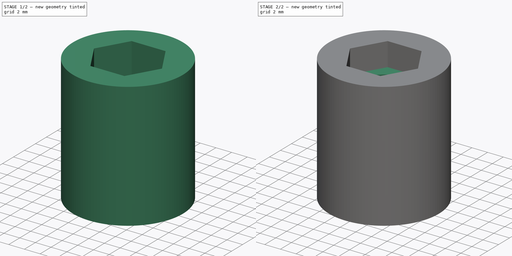
[diagram: build sequence overview — one tinted view per stage of 2, left to right]
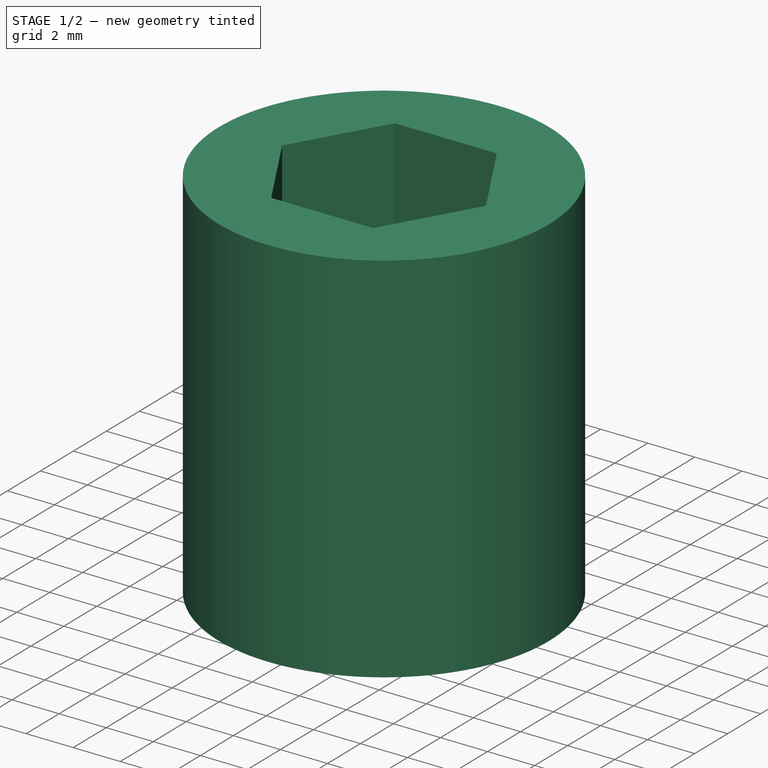
[diagram: stage 1 of 2 — iso view after this stage's code; geometry added in this stage tinted green]
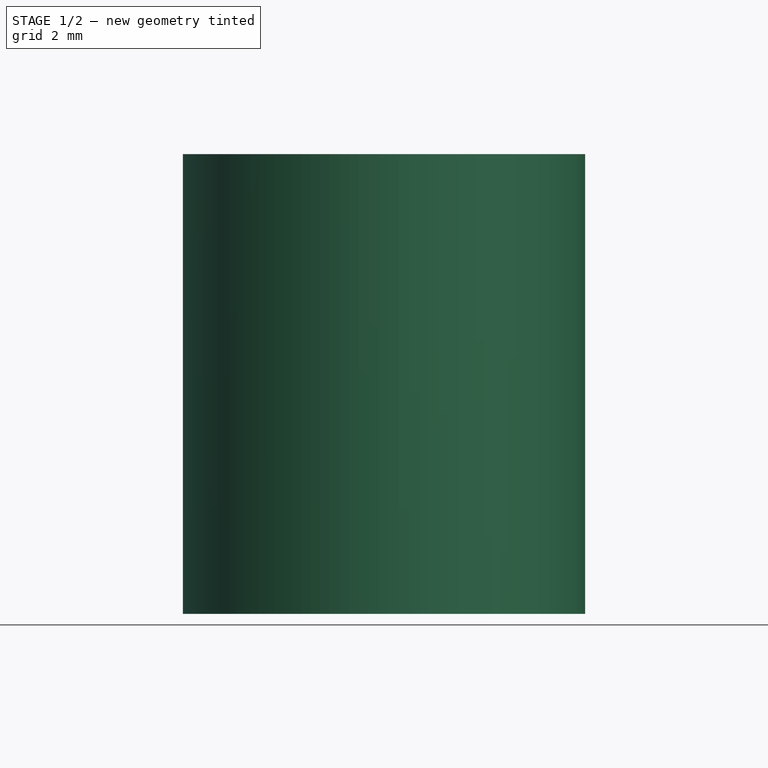
[diagram: stage 1 of 2 — front view after this stage's code; geometry added in this stage tinted green]
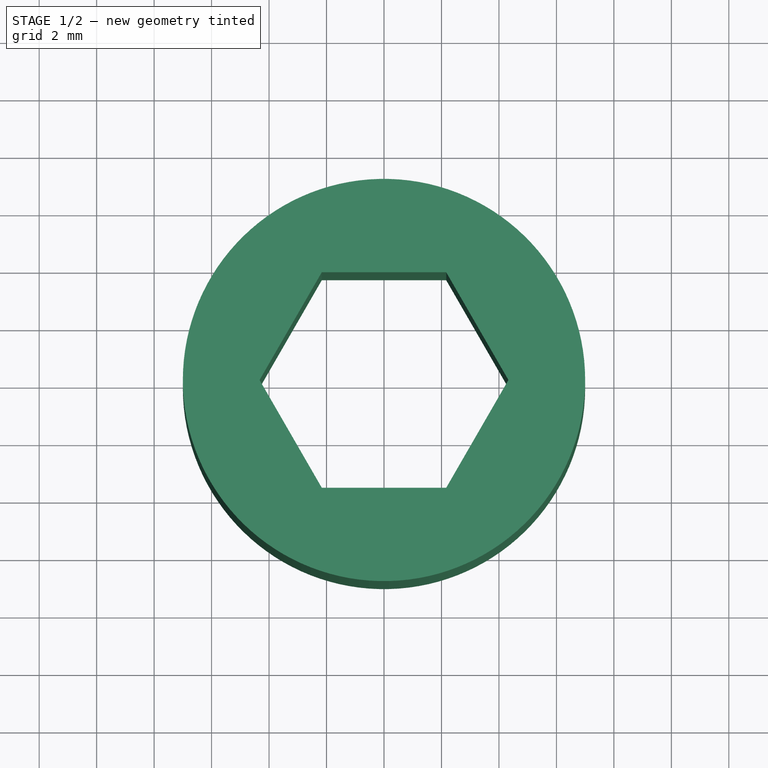
[diagram: stage 1 of 2 — top view after this stage's code; geometry added in this stage tinted green]
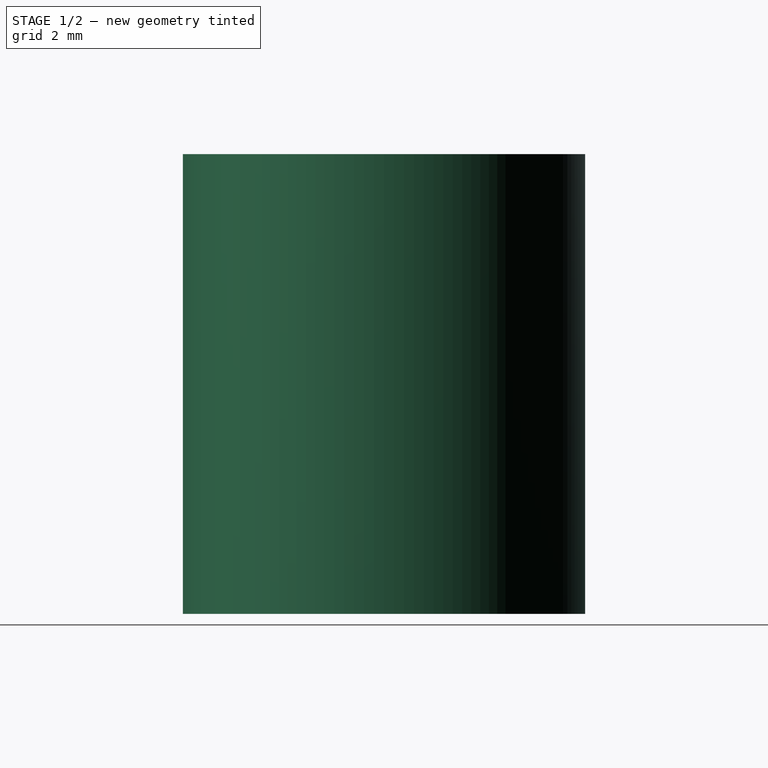
[diagram: stage 1 of 2 — right view after this stage's code; geometry added in this stage tinted green]
FCSTD DOCUMENT  (FreeCAD 0.20R29177 +426 (Git))
Label: lampPad
License: All rights reserved
LicenseURL: http://en.wikipedia.org/wiki/All_rights_reserved
objects: Sketcher::SketchObject×2, PartDesign::Pad×2, Spreadsheet::Sheet×1, PartDesign::Body×1
note: 7 computed .brp shape members not serialized (recipe doc carries the construction recipe); baked Part::Feature solids carry a one-line shape summary decoded from their .brp

FEATURE [Sketcher::SketchObject] Sketch
  FullyConstrained = true
  MapMode = 5
  Support = -> [XY_Plane]
  expr: Constraints[19] = Spreadsheet.socketHexDist
  expr: Constraints[21] = Spreadsheet.outerR
  sketch-geometry (8):
    g0: LineSegment StartX=4.33013 StartY=0 StartZ=0 EndX=2.16506 EndY=3.75 EndZ=0
    g1: LineSegment StartX=2.16506 StartY=3.75 StartZ=0 EndX=-2.16506 EndY=3.75 EndZ=0
    g2: LineSegment StartX=-2.16506 StartY=3.75 StartZ=0 EndX=-4.33013 EndY=0 EndZ=0
    g3: LineSegment StartX=-4.33013 StartY=0 StartZ=0 EndX=-2.16506 EndY=-3.75 EndZ=0
    g4: LineSegment StartX=-2.16506 StartY=-3.75 StartZ=0 EndX=2.16506 EndY=-3.75 EndZ=0
    g5: LineSegment StartX=2.16506 StartY=-3.75 StartZ=0 EndX=4.33013 EndY=0 EndZ=0
    g6: Circle CenterX=0 CenterY=0 CenterZ=0 NormalX=0 NormalY=0 NormalZ=1 AngleXU=0 Radius=4.33013
    g7: Circle CenterX=0 CenterY=0 CenterZ=0 NormalX=0 NormalY=0 NormalZ=1 AngleXU=0 Radius=7
  constraints (18):
    c: Coincident(g0,g1)
    c: Coincident(g1,g2)
    c: Coincident(g2,g3)
    c: Coincident(g3,g4)
    c: Coincident(g4,g5)
    c: Coincident(g5,g0)
    c: Equal(g0, g1-g5) x5
    c: PointOnObject(g0,g6)
    c: PointOnObject(g1,g6)
    c: PointOnObject(g2,g6)
    c: PointOnObject(g3,g6)
    c: PointOnObject(g4,g6)
    c: PointOnObject(g5,g6)
    c: Coincident(g6,g-1)
    c: PointOnObject(g5,g-1)
    c: DistanceY(g4,g0) = 7.5
    c: Coincident(g7,g6)
    c: Radius(g7) = 7
FEATURE [PartDesign::Pad] Pad
  Direction = (0,0,1)
  Length = 16
  Length2 = 10
  Profile = -> Sketch
  ReferenceAxis = -> Sketch [N_Axis]
  Type = 0
  expr: Length = Spreadsheet.totalHeight
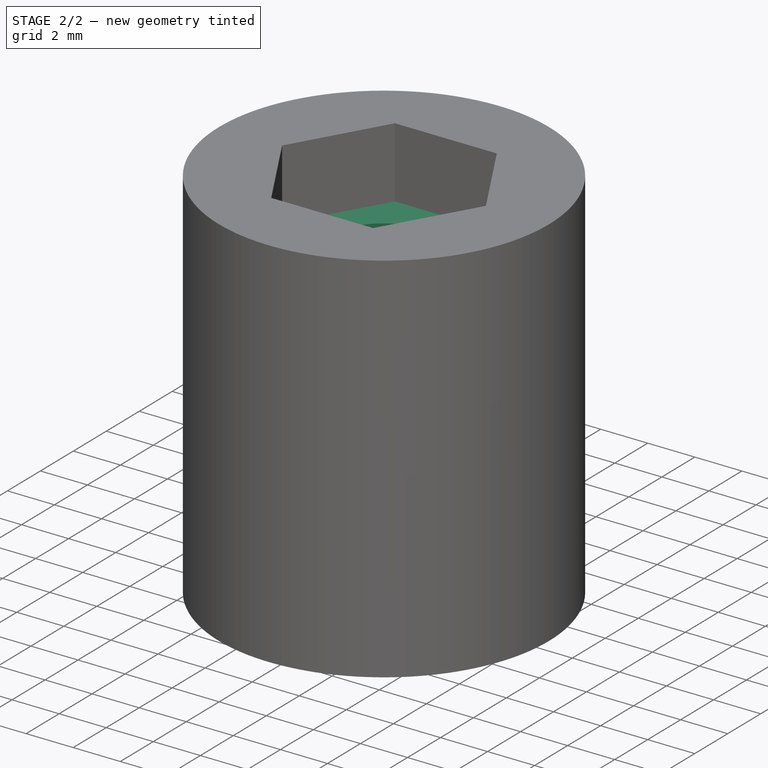
[diagram: stage 2 of 2 — iso view after this stage's code; geometry added in this stage tinted green]
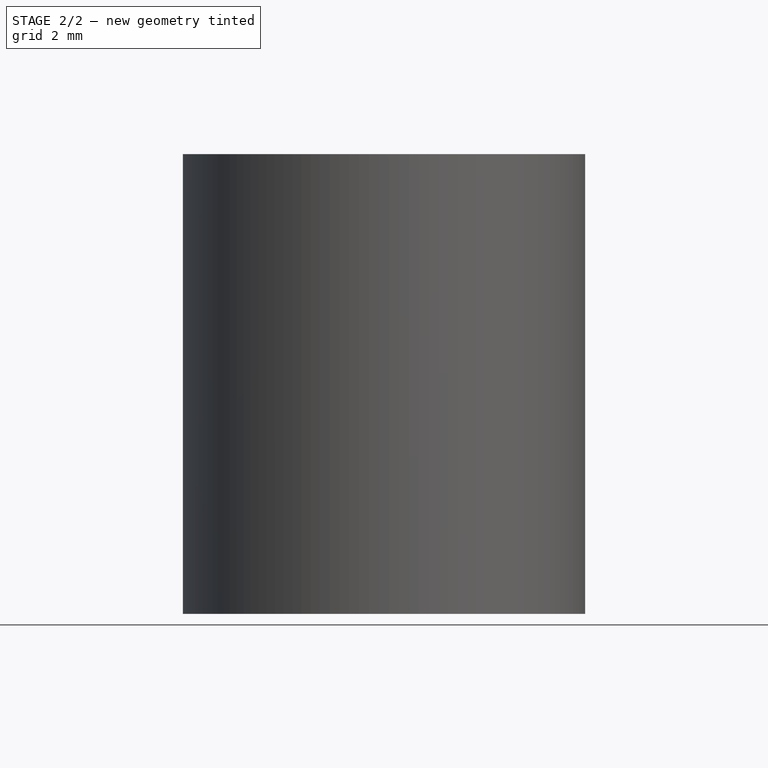
[diagram: stage 2 of 2 — front view after this stage's code; geometry added in this stage tinted green]
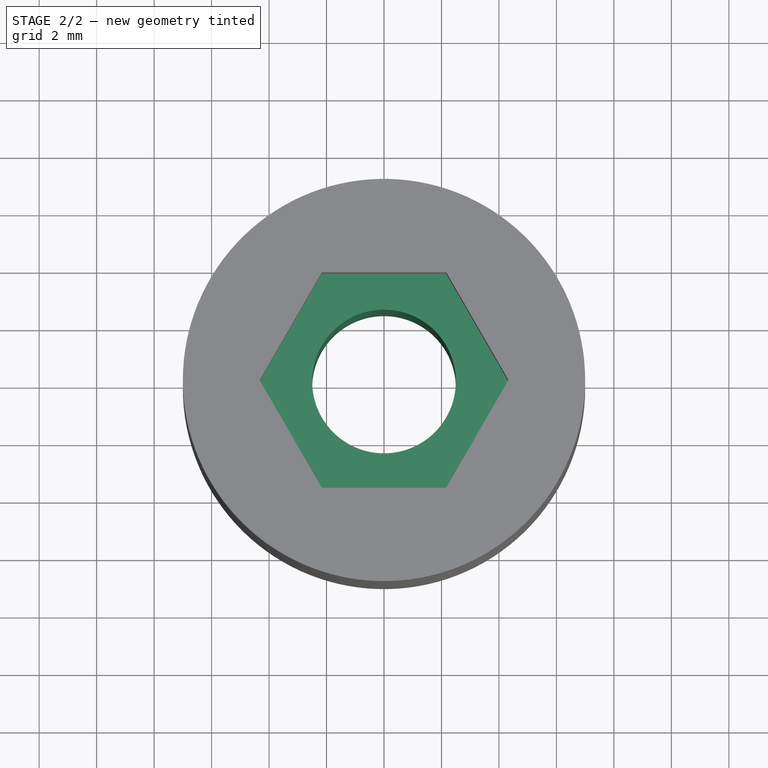
[diagram: stage 2 of 2 — top view after this stage's code; geometry added in this stage tinted green]
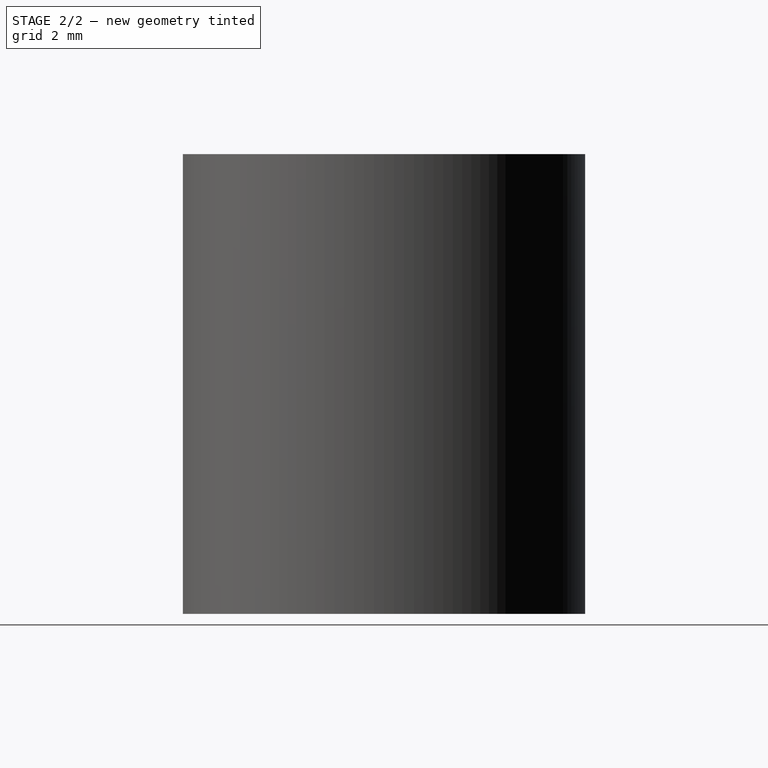
[diagram: stage 2 of 2 — right view after this stage's code; geometry added in this stage tinted green]
FEATURE [Spreadsheet::Sheet] Spreadsheet
  cells = A2=outerR; B2(outerR)=7; A3=socketHexDist; B3(socketHexDist)=7.5; A4=totalHeight; B4(totalHeight)=16; D4=was 14, a bit short; A5=socketHexHeight; B5(socketHexHeight)=3; A6=screwR; B6(screwR)=2.5; A7=baseHeight; B7(baseHeight)==totalHeight - socketHexHeight
FEATURE [Sketcher::SketchObject] Sketch001
  FullyConstrained = true
  MapMode = 5
  Support = -> [XY_Plane]
  expr: Constraints[2] = Spreadsheet.outerR
  expr: Constraints[3] = Spreadsheet.screwR
  sketch-geometry (2):
    g0: Circle CenterX=0 CenterY=0 CenterZ=0 NormalX=0 NormalY=0 NormalZ=1 AngleXU=0 Radius=7
    g1: Circle CenterX=0 CenterY=0 CenterZ=0 NormalX=0 NormalY=0 NormalZ=1 AngleXU=0 Radius=2.5
  constraints (4):
    c: Coincident(g0,g-1)
    c: Coincident(g1,g0)
    c: Radius(g0) = 7
    c: Radius(g1) = 2.5
FEATURE [PartDesign::Pad] Pad001
  BaseFeature = -> Pad
  Direction = (0,0,1)
  Length = 13
  Length2 = 10
  Profile = -> Sketch001
  ReferenceAxis = -> Sketch001 [N_Axis]
  Type = 0
  expr: Length = Spreadsheet.baseHeight
FEATURE [PartDesign::Body] Body
  Group = -> [Sketch,Pad,Sketch001,Pad001]
  Origin = -> Origin
  Tip = -> Pad001
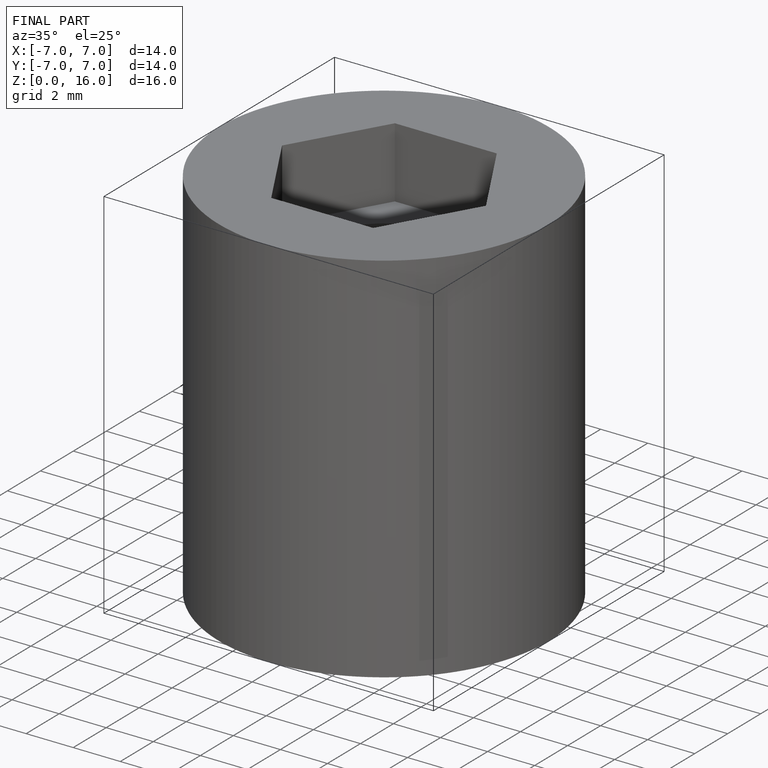
[diagram: finished part — iso view with bounding-box wireframe]
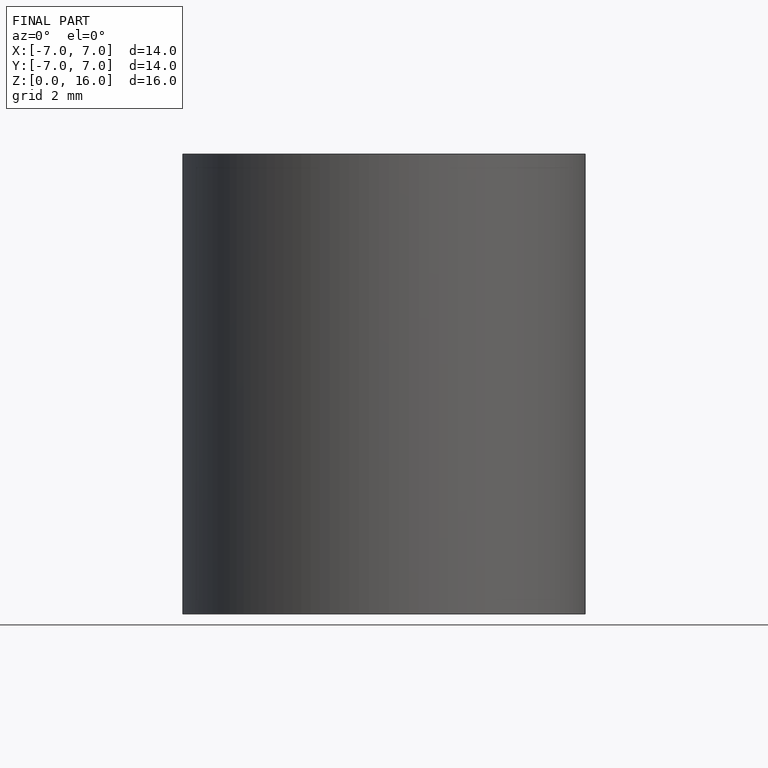
[diagram: finished part — front view with bounding-box wireframe]
